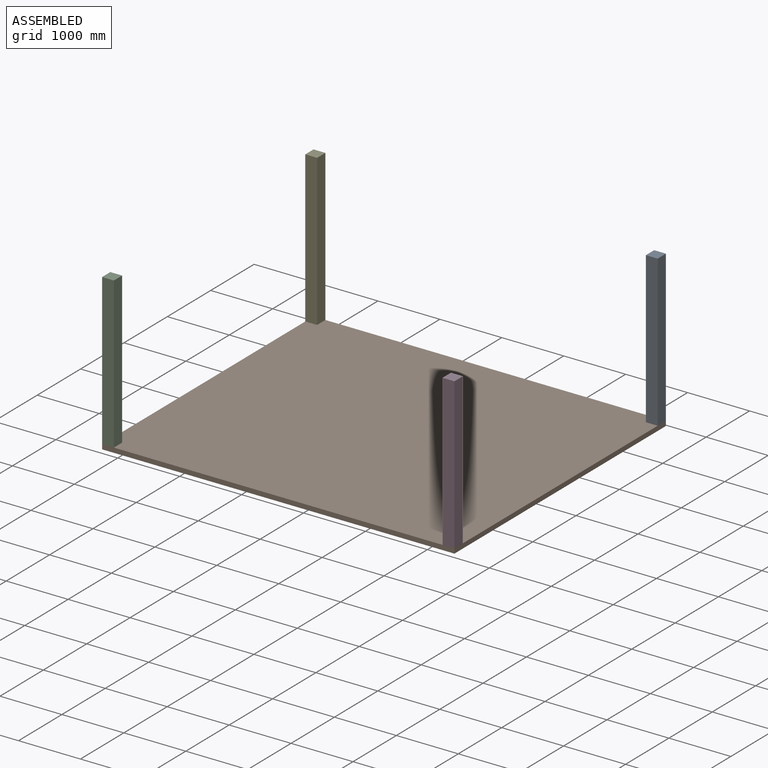
[diagram: assembled view]
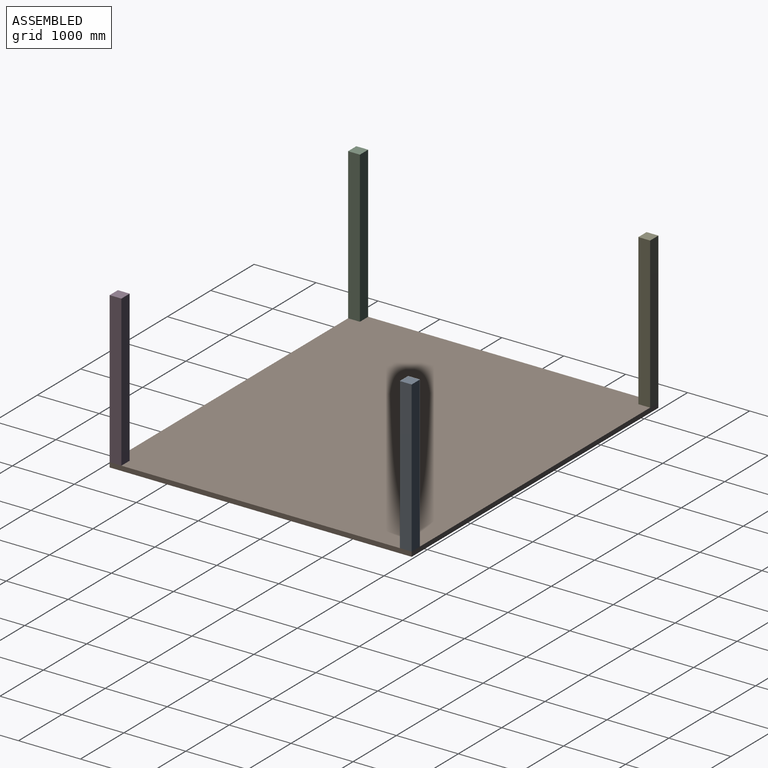
[diagram: assembled view, second angle]
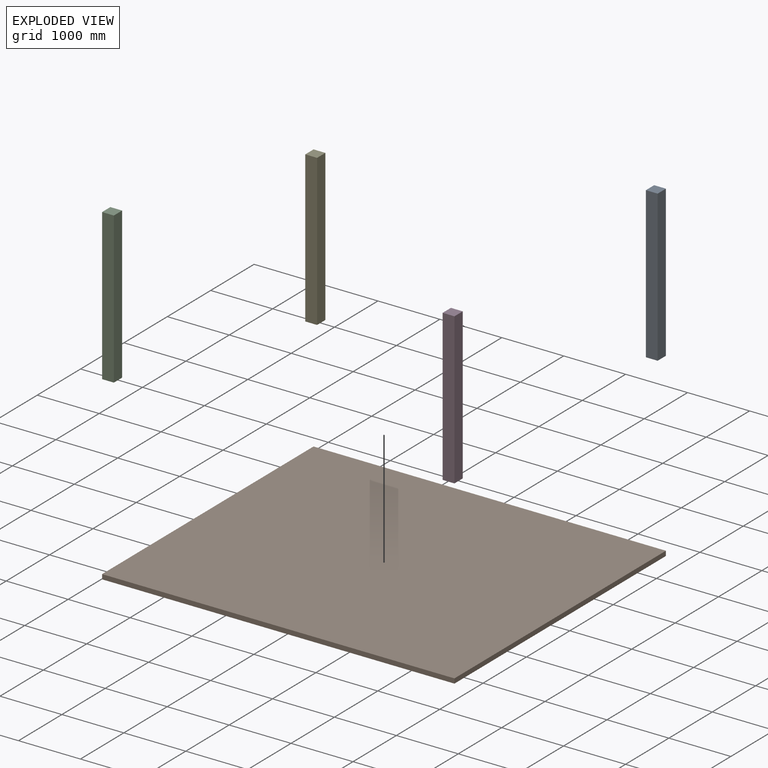
[diagram: exploded view]
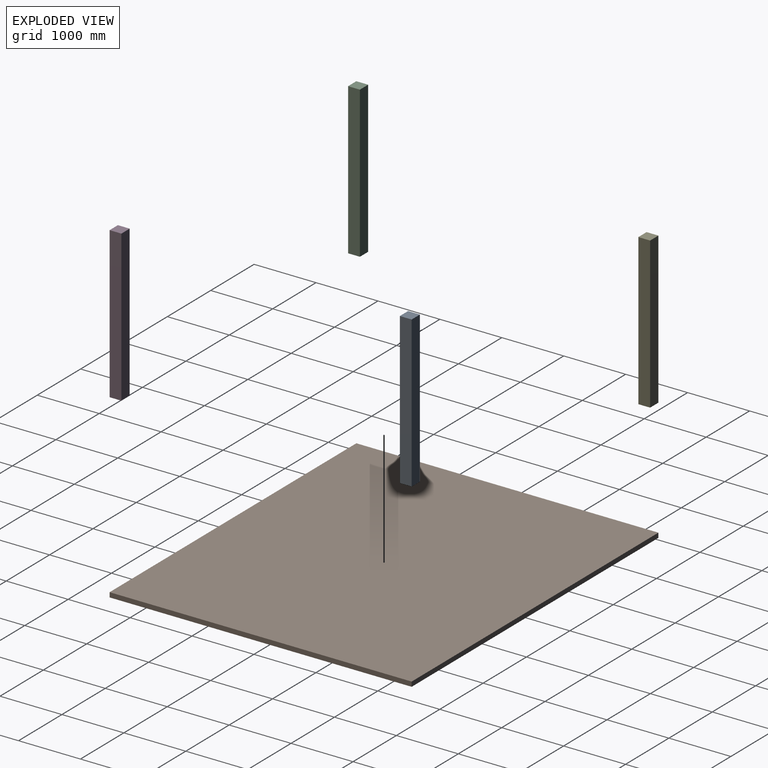
[diagram: exploded view, second angle]
ASSEMBLY  parts=5 mates=4
PART A: 6 faces, bbox 190.5x190.5x2438.4 mm
  f0: plane 2438.4x190.5mm, normal (0,-1,0), area 464515.2mm2, adj f1,f3,f4,f5
  f1: plane 2438.4x190.5mm, normal (1,0,0), area 464515.2mm2, adj f0,f2,f4,f5
  f2: plane 2438.4x190.5mm, normal (0,1,0), area 464515.2mm2, adj f1,f3,f4,f5
  f3: plane 2438.4x190.5mm, normal (-1,0,0), area 464515.2mm2, adj f0,f2,f4,f5
  f4: plane 190.5x190.5mm, normal (0,0,1), area 36290.2mm2, adj f0,f1,f2,f3
  f5: plane 190.5x190.5mm, normal (0,0,-1), area 36290.2mm2, adj f0,f1,f2,f3
PART B: 6 faces, bbox 4876.8x5689.6x76.2 mm
  f0: plane 4876.8x76.2mm, normal (0,-1,0), area 371612.2mm2, adj f1,f3,f4,f5
  f1: plane 5689.6x76.2mm, normal (1,0,0), area 433547.5mm2, adj f0,f2,f4,f5
  f2: plane 4876.8x76.2mm, normal (0,1,0), area 371612.2mm2, adj f1,f3,f4,f5
  f3: plane 5689.6x76.2mm, normal (-1,0,0), area 433547.5mm2, adj f0,f2,f4,f5
  f4: plane 5689.6x4876.8mm, normal (0,0,1), area 27747041.3mm2, adj f0,f1,f2,f3
  f5: plane 5689.6x4876.8mm, normal (0,0,-1), area 27747041.3mm2, adj f0,f1,f2,f3
PART C: same geometry as A
PART D: same geometry as A
PART E: same geometry as A
PLACE A t=(2799.88,2405.4,76.2)mm
PLACE B rot(axis=(0,0,1),90deg) t=(0,0,0)mm
PLACE C t=(-2699.22,-2280.9,76.2)mm
PLACE D t=(2799.88,-2280.9,76.2)mm
PLACE E t=(-2699.22,2405.4,76.2)mm
MATE fastened A.f5 <-> B.f4  axis (0,0,-1) through (2844.8,2438.4,76.2)mm
MATE fastened C.f5 <-> B.f4  axis (0,0,1) through (-2844.8,-2438.4,76.2)mm
MATE fastened B.f4 <-> E.f5  axis (0,0,1) through (-2844.8,2438.4,76.2)mm
MATE fastened D.f5 <-> B.f4  axis (0,0,1) through (2844.8,-2438.4,76.2)mm
